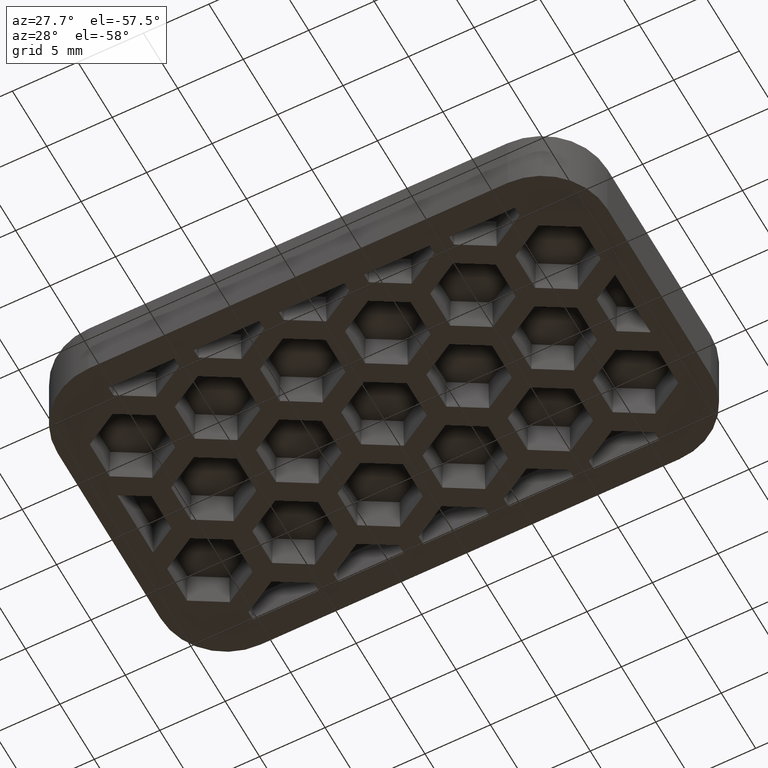
[diagram: clean part render]
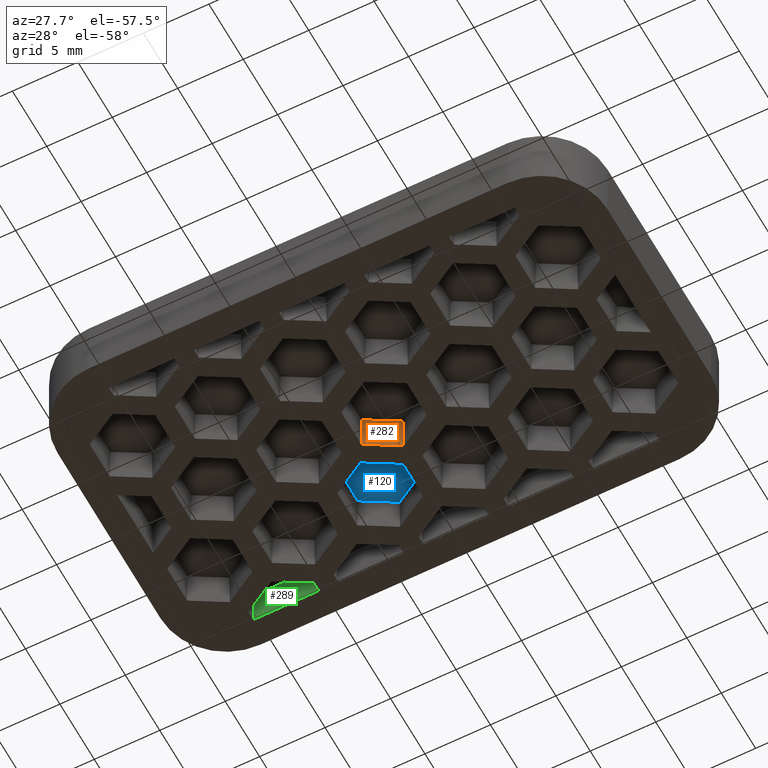
[diagram: same view with three faces highlighted in distinct colors, each labeled with its STEP entity id]
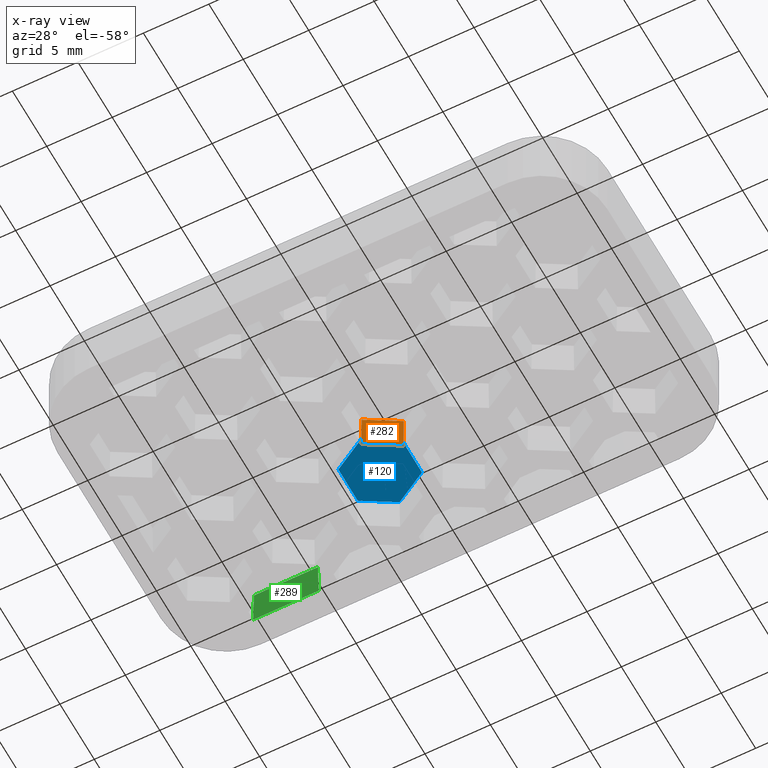
[diagram: x-ray of the same camera — body ghosted, the three highlighted faces saturated]
A machine part, auxiliary view with three faces highlighted in distinct colors.
The next image is the same camera in x-ray (body ghosted, the three faces saturated) — at least one of them is partly hidden behind the body in this view.
Their STEP definitions:

[orange] entity #282 — the highlighted planar face has unit normal (-0.4999, 0.8659, 0.0175).
#282 = ADVANCED_FACE( '', ( #764 ), #765, .F. );
#764 = FACE_OUTER_BOUND( '', #1274, .T. );
#765 = PLANE( '', #1275 );
#1274 = EDGE_LOOP( '', ( #3021, #3022, #3023, #3024 ) );
#1275 = AXIS2_PLACEMENT_3D( '', #3025, #3026, #3027 );
#3021 = ORIENTED_EDGE( '', *, *, #3804, .T. );
#3022 = ORIENTED_EDGE( '', *, *, #3361, .T. );
#3023 = ORIENTED_EDGE( '', *, *, #3802, .F. );
#3024 = ORIENTED_EDGE( '', *, *, #3499, .F. );
#3025 = CARTESIAN_POINT( '', ( -1.73472347597681E-014, 2.88675134594813, -7.11565060591490E-015 ) );
#3026 = DIRECTION( '', ( -0.499923847578196, 0.865893503920754, 0.0174524064372835 ) );
#3027 = DIRECTION( '', ( -0.866025403784438, -0.500000000000000, 2.96370307086826E-017 ) );
#3361 = EDGE_CURVE( '', #4091, #4089, #4092, .T. );
#3499 = EDGE_CURVE( '', #4338, #4329, #4340, .T. );
#3802 = EDGE_CURVE( '', #4329, #4089, #4790, .T. );
#3804 = EDGE_CURVE( '', #4338, #4091, #4792, .T. );
#4089 = VERTEX_POINT( '', #5201 );
#4091 = VERTEX_POINT( '', #5204 );
#4092 = LINE( '', #5205, #5206 );
#4329 = VERTEX_POINT( '', #5573 );
#4338 = VERTEX_POINT( '', #5586 );
#4340 = LINE( '', #5589, #5590 );
#4790 = LINE( '', #6340, #6341 );
#4792 = LINE( '', #6344, #6345 );
#5201 = CARTESIAN_POINT( '', ( -1.64798730217797E-014, 2.88675134594813, -7.11565060591490E-015 ) );
#5204 = CARTESIAN_POINT( '', ( -2.50000000000002, 1.44337567297407, -7.02727225491106E-015 ) );
#5205 = CARTESIAN_POINT( '', ( -1.69135538907739E-014, 2.88675134594813, -7.11565060591490E-015 ) );
#5206 = VECTOR( '', #6529, 1000.00000000000 );
#5573 = CARTESIAN_POINT( '', ( -1.88553165214426E-014, 2.82628522733796, 2.99999999999999 ) );
#5586 = CARTESIAN_POINT( '', ( -2.44763480521536, 1.41314261366898, 2.99999999999999 ) );
#5589 = CARTESIAN_POINT( '', ( -12.4271840327394, -4.34855281923313, 2.99999999999999 ) );
#5590 = VECTOR( '', #6671, 1000.00000000000 );
#6340 = CARTESIAN_POINT( '', ( -1.69134878290154E-014, 2.88675134594813, -7.11565060591490E-015 ) );
#6341 = VECTOR( '', #6978, 1000.00000000000 );
#6344 = CARTESIAN_POINT( '', ( -2.49949240738455, 1.44308261424089, 0.0290799614642775 ) );
#6345 = VECTOR( '', #6980, 1000.00000000000 );
#6529 = DIRECTION( '', ( 0.866025403784438, 0.500000000000000, -3.06151588455594E-017 ) );
#6671 = DIRECTION( '', ( 0.866025403784438, 0.500000000000000, -3.06151588455594E-017 ) );
#6978 = DIRECTION( '', ( -6.51084360544927E-018, 0.0201512801671579, -0.999796942337605 ) );
#6980 = DIRECTION( '', ( -0.0174515205435363, 0.0100756400835789, -0.999796942337605 ) );

[blue] entity #120 — the highlighted planar face has unit normal (0, -0, -1).
#120 = ADVANCED_FACE( '', ( #438 ), #439, .T. );
#438 = FACE_OUTER_BOUND( '', #948, .T. );
#439 = PLANE( '', #949 );
#948 = EDGE_LOOP( '', ( #1880, #1881, #1882, #1883, #1884, #1885 ) );
#949 = AXIS2_PLACEMENT_3D( '', #1886, #1887, #1888 );
#1880 = ORIENTED_EDGE( '', *, *, #3578, .F. );
#1881 = ORIENTED_EDGE( '', *, *, #3579, .F. );
#1882 = ORIENTED_EDGE( '', *, *, #3580, .F. );
#1883 = ORIENTED_EDGE( '', *, *, #3581, .F. );
#1884 = ORIENTED_EDGE( '', *, *, #3582, .F. );
#1885 = ORIENTED_EDGE( '', *, *, #3583, .F. );
#1886 = CARTESIAN_POINT( '', ( 33.5000000000000, -1.02246499027875E-014, 2.99999999999998 ) );
#1887 = DIRECTION( '', ( 0.000000000000000, -6.12303176911189E-017, -1.00000000000000 ) );
#1888 = DIRECTION( '', ( 0.000000000000000, -1.00000000000000, 6.12303176911189E-017 ) );
#3578 = EDGE_CURVE( '', #4495, #4496, #4497, .F. );
#3579 = EDGE_CURVE( '', #4498, #4495, #4499, .F. );
#3580 = EDGE_CURVE( '', #4500, #4498, #4501, .F. );
#3581 = EDGE_CURVE( '', #4502, #4500, #4503, .F. );
#3582 = EDGE_CURVE( '', #4504, #4502, #4505, .F. );
#3583 = EDGE_CURVE( '', #4496, #4504, #4506, .F. );
#4495 = VERTEX_POINT( '', #5823 );
#4496 = VERTEX_POINT( '', #5824 );
#4497 = LINE( '', #5825, #5826 );
#4498 = VERTEX_POINT( '', #5827 );
#4499 = LINE( '', #5828, #5829 );
#4500 = VERTEX_POINT( '', #5830 );
#4501 = LINE( '', #5831, #5832 );
#4502 = VERTEX_POINT( '', #5833 );
#4503 = LINE( '', #5834, #5835 );
#4504 = VERTEX_POINT( '', #5836 );
#4505 = LINE( '', #5837, #5838 );
#4506 = LINE( '', #5839, #5840 );
#5823 = CARTESIAN_POINT( '', ( -0.802365194784674, 4.21602251092987, 2.99999999999997 ) );
#5824 = CARTESIAN_POINT( '', ( -0.802365194784667, 7.04230773826783, 2.99999999999997 ) );
#5825 = CARTESIAN_POINT( '', ( -0.802365194784663, 10.4999999999998, 2.99999999999999 ) );
#5826 = VECTOR( '', #6750, 1000.00000000000 );
#5827 = CARTESIAN_POINT( '', ( -3.25000000000002, 2.80287989726089, 2.99999999999998 ) );
#5828 = CARTESIAN_POINT( '', ( -13.2295492275240, -2.95881553564121, 2.99999999999999 ) );
#5829 = VECTOR( '', #6751, 1000.00000000000 );
#5830 = CARTESIAN_POINT( '', ( -5.69763480521537, 4.21602251092987, 2.99999999999997 ) );
#5831 = CARTESIAN_POINT( '', ( -19.8954507724759, 12.4131353815325, 2.99999999999999 ) );
#5832 = VECTOR( '', #6752, 1000.00000000000 );
#5833 = CARTESIAN_POINT( '', ( -5.69763480521537, 7.04230773826782, 2.99999999999997 ) );
#5834 = CARTESIAN_POINT( '', ( -5.69763480521536, 10.4999999999999, 2.99999999999999 ) );
#5835 = VECTOR( '', #6753, 1000.00000000000 );
#5836 = CARTESIAN_POINT( '', ( -3.25000000000001, 8.45545035193681, 2.99999999999999 ) );
#5837 = CARTESIAN_POINT( '', ( -15.6771840327394, 1.28061230536572, 2.99999999999999 ) );
#5838 = VECTOR( '', #6754, 1000.00000000000 );
#5839 = CARTESIAN_POINT( '', ( -17.4478159672605, 16.6525632225394, 2.99999999999999 ) );
#5840 = VECTOR( '', #6755, 1000.00000000000 );
#6750 = DIRECTION( '', ( -4.44089209850063E-016, -1.00000000000000, 6.12303176911189E-017 ) );
#6751 = DIRECTION( '', ( -0.866025403784439, -0.500000000000000, 3.06151588455594E-017 ) );
#6752 = DIRECTION( '', ( -0.866025403784439, 0.500000000000000, -3.06151588455594E-017 ) );
#6753 = DIRECTION( '', ( -2.77555756156289E-016, 1.00000000000000, -6.12303176911189E-017 ) );
#6754 = DIRECTION( '', ( 0.866025403784438, 0.500000000000000, -3.06151588455595E-017 ) );
#6755 = DIRECTION( '', ( 0.866025403784439, -0.500000000000000, 3.06151588455594E-017 ) );

[green] entity #289 — the highlighted planar face has unit normal (0, -1, 0).
#289 = ADVANCED_FACE( '', ( #778 ), #779, .T. );
#778 = FACE_OUTER_BOUND( '', #1288, .T. );
#779 = PLANE( '', #1289 );
#1288 = EDGE_LOOP( '', ( #3070, #3071, #3072, #3073 ) );
#1289 = AXIS2_PLACEMENT_3D( '', #3074, #3075, #3076 );
#3070 = ORIENTED_EDGE( '', *, *, #3262, .F. );
#3071 = ORIENTED_EDGE( '', *, *, #3681, .F. );
#3072 = ORIENTED_EDGE( '', *, *, #3633, .F. );
#3073 = ORIENTED_EDGE( '', *, *, #3680, .F. );
#3074 = CARTESIAN_POINT( '', ( -33.5000000000000, 10.5000000000000, -2.99999999980574 ) );
#3075 = DIRECTION( '', ( 0.000000000000000, -1.00000000000000, 6.12303176911189E-017 ) );
#3076 = DIRECTION( '', ( -1.00000000000000, 0.000000000000000, 0.000000000000000 ) );
#3262 = EDGE_CURVE( '', #3892, #3893, #3894, .T. );
#3633 = EDGE_CURVE( '', #4601, #4602, #4603, .T. );
#3680 = EDGE_CURVE( '', #3893, #4601, #4668, .T. );
#3681 = EDGE_CURVE( '', #4602, #3892, #4669, .T. );
#3892 = VERTEX_POINT( '', #4910 );
#3893 = VERTEX_POINT( '', #4911 );
#3894 = LINE( '', #4912, #4913 );
#4601 = VERTEX_POINT( '', #5982 );
#4602 = VERTEX_POINT( '', #5983 );
#4603 = LINE( '', #5984, #5985 );
#4668 = LINE( '', #6096, #6097 );
#4669 = LINE( '', #6098, #6099 );
#4910 = CARTESIAN_POINT( '', ( -10.5000000000000, 10.4999999999999, -7.58181223966397E-015 ) );
#4911 = CARTESIAN_POINT( '', ( -15.5000000000000, 10.4999999999999, -1.45207061435712E-014 ) );
#4912 = CARTESIAN_POINT( '', ( 33.5000000000000, 10.5000000000000, -1.45207061435712E-014 ) );
#4913 = VECTOR( '', #6422, 1000.00000000000 );
#5982 = CARTESIAN_POINT( '', ( -15.4476348052154, 10.4999999999999, 2.99999999999999 ) );
#5983 = CARTESIAN_POINT( '', ( -10.5523651947847, 10.4999999999999, 2.99999999999999 ) );
#5984 = CARTESIAN_POINT( '', ( -33.5000000000000, 10.5000000000000, 2.99999999999997 ) );
#5985 = VECTOR( '', #6809, 1000.00000000000 );
#6096 = CARTESIAN_POINT( '', ( -15.4493259806437, 10.4999999999999, 2.90311262459676 ) );
#6097 = VECTOR( '', #6856, 1000.00000000000 );
#6098 = CARTESIAN_POINT( '', ( -10.5555474032035, 10.4999999999999, 3.18230859821676 ) );
#6099 = VECTOR( '', #6857, 1000.00000000000 );
#6422 = DIRECTION( '', ( -1.00000000000000, 0.000000000000000, 0.000000000000000 ) );
#6809 = DIRECTION( '', ( 1.00000000000000, 0.000000000000000, 0.000000000000000 ) );
#6856 = DIRECTION( '', ( 0.0174524064372835, 6.12209920171588E-017, 0.999847695156391 ) );
#6857 = DIRECTION( '', ( 0.0174524064372835, -6.12209920171588E-017, -0.999847695156391 ) );